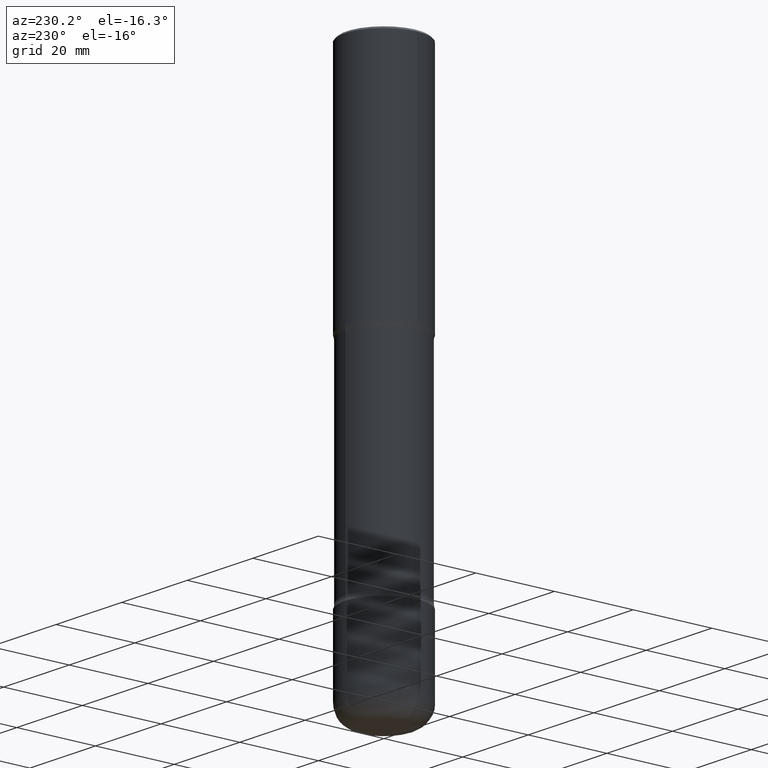
[diagram: clean part render]
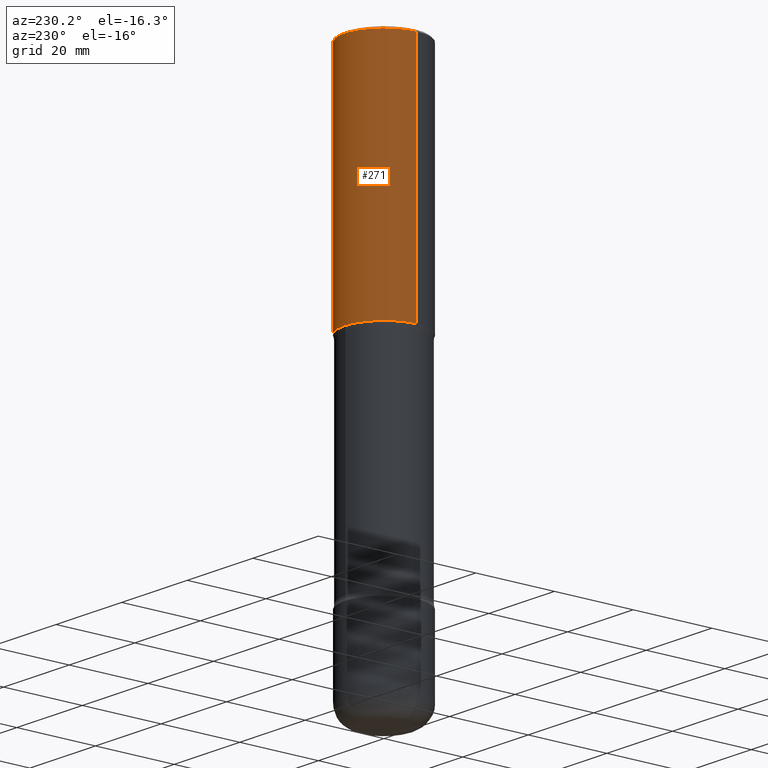
[diagram: same view with one face highlighted and labeled with its STEP entity id]
A machine part, auxiliary view. The second image highlights one B-rep face of the part: STEP entity #271.
In plain terms, the highlighted cylindrical surface (partial cylindrical patch) has radius 10 mm, axis along (-0, 0, 1).
Its self-contained STEP definition (entity closure, byte-faithful):
#24 = DIRECTION ( 'NONE',  ( -2.445468806185136597E-29, 3.491481338843145583E-15, 1.000000000000000000 ) ) ;
#55 = EDGE_CURVE ( 'NONE', #381, #342, #262, .T. ) ;
#60 = CYLINDRICAL_SURFACE ( 'NONE', #186, 0.3937000000000001054 ) ;
#67 = CARTESIAN_POINT ( 'NONE',  ( 5.776686413970530874E-29, -8.247577218615279626E-15, -2.362200000000000077 ) ) ;
#74 = ORIENTED_EDGE ( 'NONE', *, *, #226, .T. ) ;
#79 = EDGE_CURVE ( 'NONE', #462, #110, #468, .T. ) ;
#94 = VECTOR ( 'NONE', #450, 39.37007874015748143 ) ;
#103 = CARTESIAN_POINT ( 'NONE',  ( -0.3937000000000001054, 2.797406750687515181E-15, -1.936584745033357016E-29 ) ) ;
#110 = VERTEX_POINT ( 'NONE', #136 ) ;
#111 = DIRECTION ( 'NONE',  ( 1.000000000000000000, -6.982962677686266711E-15, 4.876176775795935793E-29 ) ) ;
#135 = CARTESIAN_POINT ( 'NONE',  ( 0.3937000000000000499, -2.770807688499515734E-15, -0.02000000000000008715 ) ) ;
#136 = CARTESIAN_POINT ( 'NONE',  ( -0.3937000000000002720, -1.361296672008554112E-15, -2.362200000000000077 ) ) ;
#155 = LINE ( 'NONE', #195, #94 ) ;
#184 = CARTESIAN_POINT ( 'NONE',  ( 0.3937000000000002164, -1.099676962482036442E-14, -2.362200000000000077 ) ) ;
#186 = AXIS2_PLACEMENT_3D ( 'NONE', #287, #363, #111 ) ;
#195 = CARTESIAN_POINT ( 'NONE',  ( 0.3937000000000001054, -2.749192406205084005E-15, 1.919750796630860452E-29 ) ) ;
#199 = DIRECTION ( 'NONE',  ( -2.445468806185136877E-29, 3.491481338843145188E-15, 1.000000000000000000 ) ) ;
#203 = DIRECTION ( 'NONE',  ( 1.000000000000000000, -6.982962677686266711E-15, 0.000000000000000000 ) ) ;
#226 = EDGE_CURVE ( 'NONE', #110, #342, #236, .T. ) ;
#236 = LINE ( 'NONE', #103, #344 ) ;
#238 = ORIENTED_EDGE ( 'NONE', *, *, #55, .F. ) ;
#244 = EDGE_CURVE ( 'NONE', #462, #381, #155, .T. ) ;
#262 = CIRCLE ( 'NONE', #325, 0.3937000000000000499 ) ;
#271 = ADVANCED_FACE ( 'NONE', ( #549 ), #60, .T. ) ;
#287 = CARTESIAN_POINT ( 'NONE',  ( 0.000000000000000000, 0.000000000000000000, 0.000000000000000000 ) ) ;
#290 = ORIENTED_EDGE ( 'NONE', *, *, #79, .T. ) ;
#318 = DIRECTION ( 'NONE',  ( 1.000000000000000000, -6.982962677686265922E-15, 0.000000000000000000 ) ) ;
#325 = AXIS2_PLACEMENT_3D ( 'NONE', #404, #448, #318 ) ;
#342 = VERTEX_POINT ( 'NONE', #428 ) ;
#344 = VECTOR ( 'NONE', #199, 39.37007874015748143 ) ;
#363 = DIRECTION ( 'NONE',  ( -2.445468806185136597E-29, 3.491481338843145583E-15, 1.000000000000000000 ) ) ;
#378 = EDGE_LOOP ( 'NONE', ( #290, #74, #238, #501 ) ) ;
#381 = VERTEX_POINT ( 'NONE', #135 ) ;
#404 = CARTESIAN_POINT ( 'NONE',  ( 4.890937612370294178E-31, -6.982962677686321191E-17, -0.02000000000000008715 ) ) ;
#428 = CARTESIAN_POINT ( 'NONE',  ( -0.3937000000000000499, 2.679362779428219918E-15, -0.02000000000000008715 ) ) ;
#448 = DIRECTION ( 'NONE',  ( -2.445468806185136597E-29, 3.491481338843145583E-15, 1.000000000000000000 ) ) ;
#450 = DIRECTION ( 'NONE',  ( -2.445468806185136877E-29, 3.491481338843145188E-15, 1.000000000000000000 ) ) ;
#462 = VERTEX_POINT ( 'NONE', #184 ) ;
#468 = CIRCLE ( 'NONE', #548, 0.3937000000000002164 ) ;
#501 = ORIENTED_EDGE ( 'NONE', *, *, #244, .F. ) ;
#548 = AXIS2_PLACEMENT_3D ( 'NONE', #67, #24, #203 ) ;
#549 = FACE_OUTER_BOUND ( 'NONE', #378, .T. ) ;